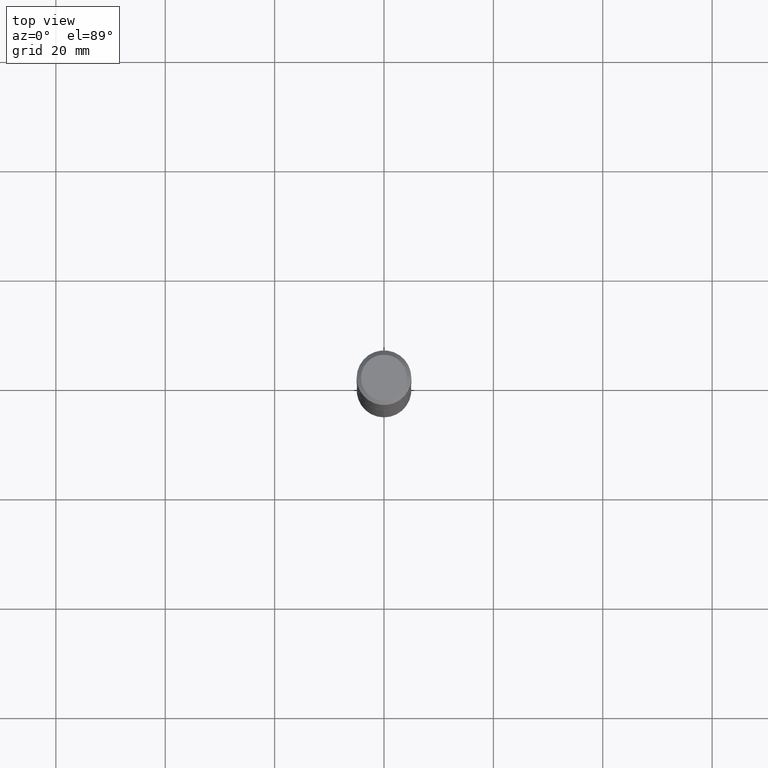
[diagram: clean part render]
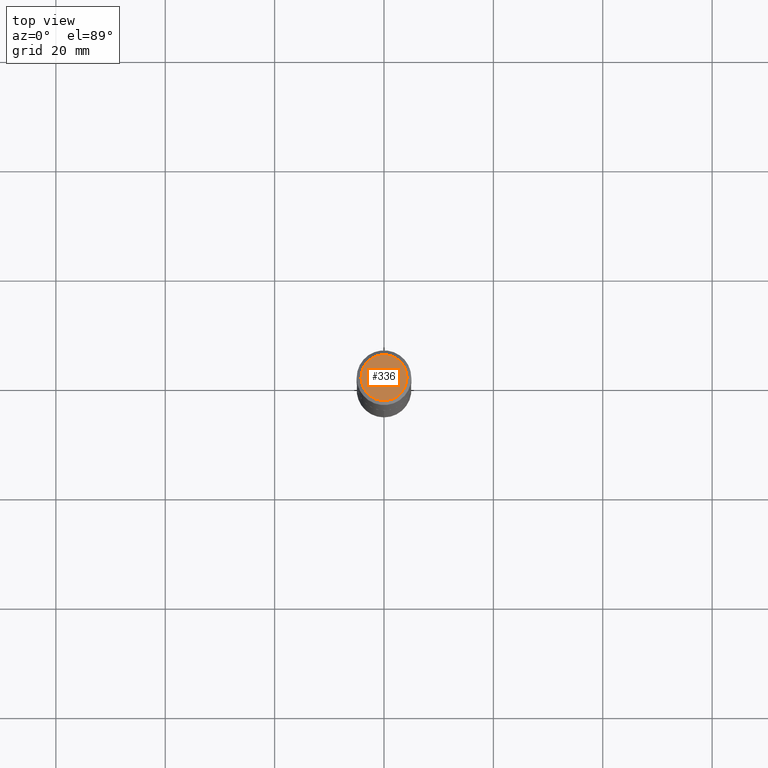
[diagram: same view with one face highlighted and labeled with its STEP entity id]
A machine part, top view. The second image highlights one B-rep face of the part: STEP entity #336.
In plain terms, the highlighted planar face has unit normal (0, -0, -1).
Its self-contained STEP definition (entity closure, byte-faithful):
#12 = CARTESIAN_POINT ( 'NONE',  ( 0.1655999999999999972, -1.297848145565570390E-15, 1.206277097168728884E-18 ) ) ;
#16 = PLANE ( 'NONE',  #43 ) ;
#20 = CARTESIAN_POINT ( 'NONE',  ( -2.949913012720698115E-47, 4.211693974208535336E-33, 1.206277097160147711E-18 ) ) ;
#43 = AXIS2_PLACEMENT_3D ( 'NONE', #133, #157, #247 ) ;
#45 = FACE_OUTER_BOUND ( 'NONE', #240, .T. ) ;
#51 = DIRECTION ( 'NONE',  ( 1.000000000000000000, -6.982962677686266711E-15, 4.876220105038334323E-29 ) ) ;
#60 = AXIS2_PLACEMENT_3D ( 'NONE', #100, #314, #279 ) ;
#73 = CIRCLE ( 'NONE', #237, 0.1655999999999999972 ) ;
#100 = CARTESIAN_POINT ( 'NONE',  ( -2.949913012720698115E-47, 4.211693974208535336E-33, 1.206277097160147711E-18 ) ) ;
#113 = EDGE_CURVE ( 'NONE', #347, #303, #73, .T. ) ;
#133 = CARTESIAN_POINT ( 'NONE',  ( -1.474956506360349058E-47, 2.105846987104267668E-33, 6.031385485800738553E-19 ) ) ;
#157 = DIRECTION ( 'NONE',  ( 2.438088387897960049E-29, -3.491481338843145188E-15, -1.000000000000000000 ) ) ;
#224 = CARTESIAN_POINT ( 'NONE',  ( -0.1655999999999999972, 1.210933015344269141E-15, 1.206277097151870064E-18 ) ) ;
#226 = CIRCLE ( 'NONE', #60, 0.1655999999999999972 ) ;
#237 = AXIS2_PLACEMENT_3D ( 'NONE', #20, #340, #51 ) ;
#240 = EDGE_LOOP ( 'NONE', ( #389, #301 ) ) ;
#247 = DIRECTION ( 'NONE',  ( -1.000000000000000000, 6.982962677686265922E-15, -4.876176775795935793E-29 ) ) ;
#251 = EDGE_CURVE ( 'NONE', #303, #347, #226, .T. ) ;
#279 = DIRECTION ( 'NONE',  ( 1.000000000000000000, -6.982962677686266711E-15, 4.876220105038334323E-29 ) ) ;
#301 = ORIENTED_EDGE ( 'NONE', *, *, #251, .T. ) ;
#303 = VERTEX_POINT ( 'NONE', #12 ) ;
#314 = DIRECTION ( 'NONE',  ( -2.445468806185136597E-29, 3.491481338843145583E-15, 1.000000000000000000 ) ) ;
#336 = ADVANCED_FACE ( 'NONE', ( #45 ), #16, .F. ) ;
#340 = DIRECTION ( 'NONE',  ( -2.445468806185136597E-29, 3.491481338843145583E-15, 1.000000000000000000 ) ) ;
#347 = VERTEX_POINT ( 'NONE', #224 ) ;
#389 = ORIENTED_EDGE ( 'NONE', *, *, #113, .T. ) ;